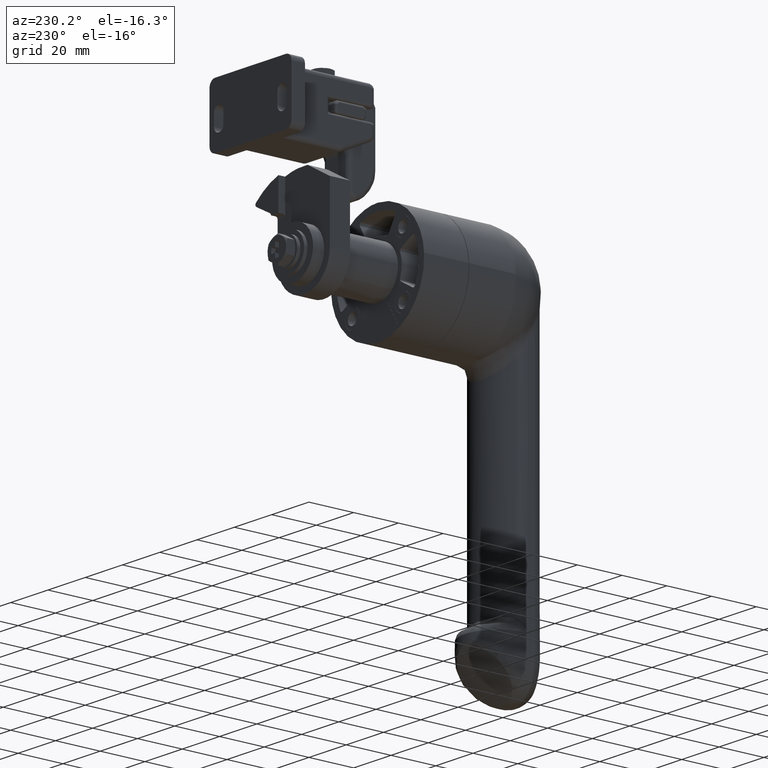
[diagram: clean part render]
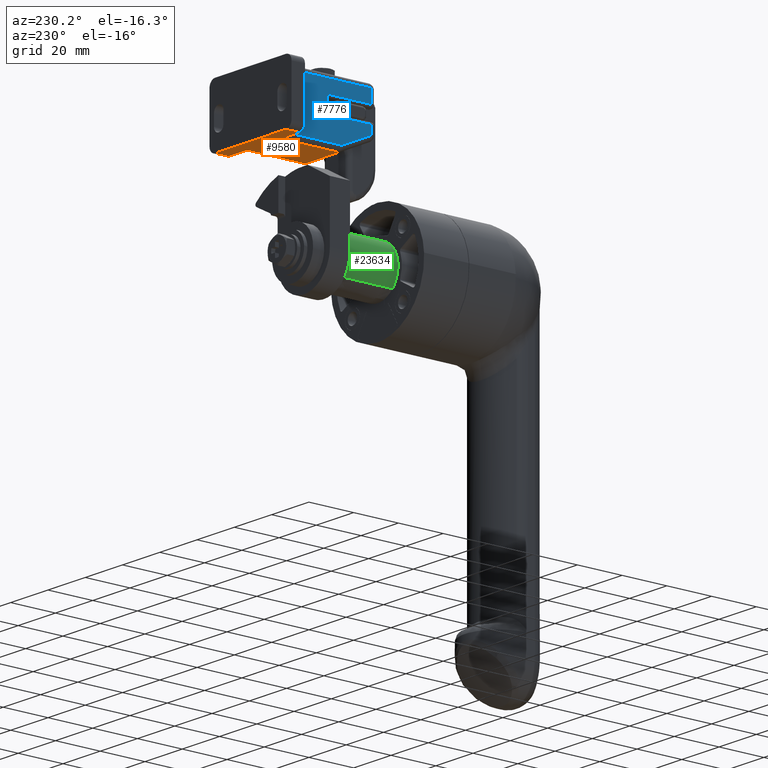
[diagram: same view with three faces highlighted in distinct colors, each labeled with its STEP entity id]
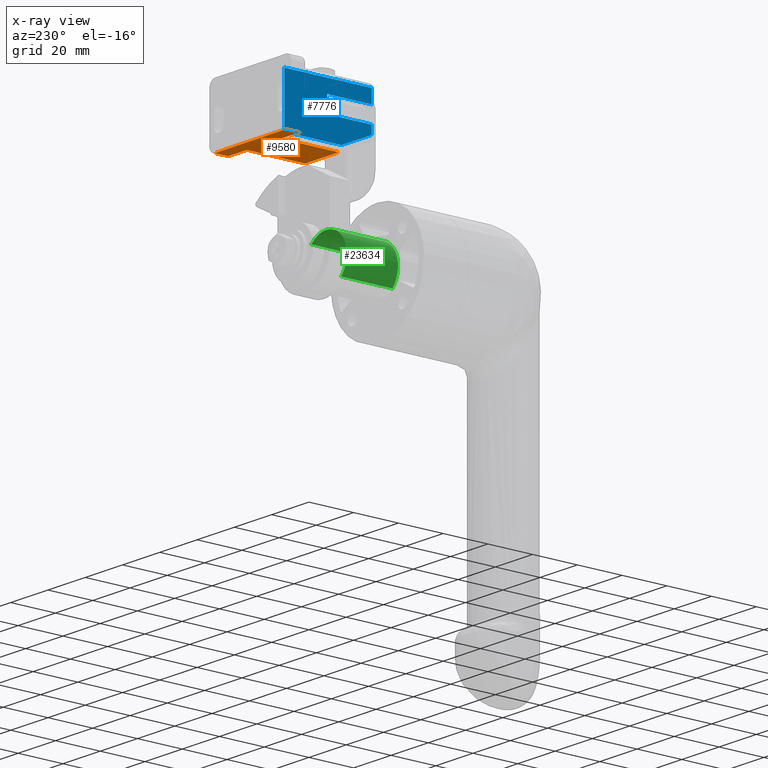
[diagram: x-ray of the same camera — body ghosted, the three highlighted faces saturated]
A machine part, auxiliary view with three faces highlighted in distinct colors.
The next image is the same camera in x-ray (body ghosted, the three faces saturated) — at least one of them is partly hidden behind the body in this view.
Their STEP definitions:

[orange] entity #9580 — the highlighted face is a freeform B-spline surface patch.
#7533=CARTESIAN_POINT('',(-25.249999999969301,31.999999999956099,33.999999999670202));
#7534=VERTEX_POINT('',#7533);
#7548=CARTESIAN_POINT('',(-15.250000000033280,31.999999999946098,33.999999999670202));
#7549=VERTEX_POINT('',#7548);
#7550=CARTESIAN_POINT('',(-25.249999999969301,31.999999999956099,33.999999999670202));
#7551=CARTESIAN_POINT('',(-15.250000000033280,31.999999999946098,33.999999999670202));
#7552=QUASI_UNIFORM_CURVE('',1,(#7550,#7551),.UNSPECIFIED.,.F.,.U.);
#7553=EDGE_CURVE('',#7534,#7549,#7552,.T.);
#7648=CARTESIAN_POINT('',(12.749999999966651,38.0,33.999999999670202));
#7649=VERTEX_POINT('',#7648);
#7663=CARTESIAN_POINT('',(-25.249999999969301,38.0,33.999999999670202));
#7664=VERTEX_POINT('',#7663);
#7665=CARTESIAN_POINT('',(12.749999999966651,38.0,33.999999999670202));
#7666=CARTESIAN_POINT('',(-25.249999999969301,38.0,33.999999999670202));
#7667=QUASI_UNIFORM_CURVE('',1,(#7665,#7666),.UNSPECIFIED.,.F.,.U.);
#7668=EDGE_CURVE('',#7649,#7664,#7667,.T.);
#7807=CARTESIAN_POINT('',(-14.921010117824910,6.432952589162301,33.999999999670202));
#7808=VERTEX_POINT('',#7807);
#7825=CARTESIAN_POINT('',(-15.250000000033280,6.432952589162397,33.999999999670202));
#7826=VERTEX_POINT('',#7825);
#7840=CARTESIAN_POINT('',(-14.921010117824910,6.432952589162301,33.999999999670202));
#7841=CARTESIAN_POINT('',(-15.250000000033280,6.432952589162397,33.999999999670202));
#7842=QUASI_UNIFORM_CURVE('',1,(#7840,#7841),.UNSPECIFIED.,.F.,.U.);
#7843=EDGE_CURVE('',#7808,#7826,#7842,.T.);
#8195=CARTESIAN_POINT('',(-14.350000000001220,6.000000000274898,34.0));
#8196=VERTEX_POINT('',#8195);
#8197=CARTESIAN_POINT('',(-14.350000000001220,6.000000000274898,34.0));
#8198=CARTESIAN_POINT('',(-14.663579343742480,6.000000001000878,33.999999999670209));
#8199=CARTESIAN_POINT('',(-14.921010117824910,6.432952589162309,33.999999999670202));
#8207=(BOUNDED_CURVE()B_SPLINE_CURVE(2,(#8197,#8198,#8199),.UNSPECIFIED.,.F.,.U.)CURVE()GEOMETRIC_REPRESENTATION_ITEM()QUASI_UNIFORM_CURVE()RATIONAL_B_SPLINE_CURVE((1.0,0.954186308323294,1.0))REPRESENTATION_ITEM(''));
#8208=EDGE_CURVE('',#8196,#7808,#8207,.T.);
#8980=CARTESIAN_POINT('',(-15.250000000033280,6.432952589162397,33.999999999670202));
#8981=CARTESIAN_POINT('',(-15.250000000033280,31.999999999946098,33.999999999670202));
#8982=QUASI_UNIFORM_CURVE('',1,(#8980,#8981),.UNSPECIFIED.,.F.,.U.);
#8983=EDGE_CURVE('',#7826,#7549,#8982,.T.);
#9012=CARTESIAN_POINT('',(2.749999999966720,6.432952589162301,33.999999999670202));
#9013=VERTEX_POINT('',#9012);
#9027=CARTESIAN_POINT('',(2.749999999966720,31.999999999946201,33.999999999670202));
#9028=VERTEX_POINT('',#9027);
#9029=CARTESIAN_POINT('',(2.749999999966720,31.999999999946201,33.999999999670202));
#9030=CARTESIAN_POINT('',(2.749999999966720,6.432952589162301,33.999999999670202));
#9031=QUASI_UNIFORM_CURVE('',1,(#9029,#9030),.UNSPECIFIED.,.F.,.U.);
#9032=EDGE_CURVE('',#9028,#9013,#9031,.T.);
#9198=CARTESIAN_POINT('',(12.749999999966651,31.999999999956120,33.999999999670202));
#9199=VERTEX_POINT('',#9198);
#9215=CARTESIAN_POINT('',(12.749999999966651,38.0,33.999999999670202));
#9216=CARTESIAN_POINT('',(12.749999999966651,31.999999999956120,33.999999999670202));
#9217=QUASI_UNIFORM_CURVE('',1,(#9215,#9216),.UNSPECIFIED.,.F.,.U.);
#9218=EDGE_CURVE('',#7649,#9199,#9217,.T.);
#9244=CARTESIAN_POINT('',(-25.249999999969301,31.999999999956099,33.999999999670202));
#9245=CARTESIAN_POINT('',(-25.249999999969301,38.0,33.999999999670202));
#9246=QUASI_UNIFORM_CURVE('',1,(#9244,#9245),.UNSPECIFIED.,.F.,.U.);
#9247=EDGE_CURVE('',#7534,#7664,#9246,.T.);
#9533=CARTESIAN_POINT('',(-27.148099926314728,4.401600061994486,33.999999999670202));
#9534=CARTESIAN_POINT('',(14.648100945551500,4.401600061994486,33.999999999670202));
#9535=CARTESIAN_POINT('',(-27.148099926314728,39.598400796285993,33.999999999670202));
#9536=CARTESIAN_POINT('',(14.648100945551500,39.598400796285993,33.999999999670202));
#9537=B_SPLINE_SURFACE_WITH_KNOTS('',1,1,((#9533,#9535),(#9534,#9536)),.UNSPECIFIED.,.F.,.F.,.U.,(2,2),(2,2),(0.0,41.796200871866233),(0.0,35.196800734291507),.UNSPECIFIED.);
#9538=ORIENTED_EDGE('',*,*,#9032,.T.);
#9539=CARTESIAN_POINT('',(2.421010117822419,6.432952589162301,33.999999999670202));
#9540=VERTEX_POINT('',#9539);
#9541=CARTESIAN_POINT('',(2.749999999966720,6.432952589162301,33.999999999670202));
#9542=CARTESIAN_POINT('',(2.421010117822419,6.432952589162301,33.999999999670202));
#9543=QUASI_UNIFORM_CURVE('',1,(#9541,#9542),.UNSPECIFIED.,.F.,.U.);
#9544=EDGE_CURVE('',#9013,#9540,#9543,.T.);
#9545=ORIENTED_EDGE('',*,*,#9544,.T.);
#9546=CARTESIAN_POINT('',(1.849999999998721,5.999999999973596,33.999999999670202));
#9547=VERTEX_POINT('',#9546);
#9548=CARTESIAN_POINT('',(2.421010117822418,6.432952589162301,33.999999999670202));
#9549=CARTESIAN_POINT('',(2.163579343739963,6.000000001000775,33.999999999670202));
#9550=CARTESIAN_POINT('',(1.849999999998721,6.000000001000775,33.999999999670202));
#9558=(BOUNDED_CURVE()B_SPLINE_CURVE(2,(#9548,#9549,#9550),.UNSPECIFIED.,.F.,.U.)CURVE()GEOMETRIC_REPRESENTATION_ITEM()QUASI_UNIFORM_CURVE()RATIONAL_B_SPLINE_CURVE((1.0,0.954186308323281,1.0))REPRESENTATION_ITEM(''));
#9559=EDGE_CURVE('',#9540,#9547,#9558,.T.);
#9560=ORIENTED_EDGE('',*,*,#9559,.T.);
#9561=CARTESIAN_POINT('',(-14.350000000001220,6.000000000274898,34.0));
#9562=CARTESIAN_POINT('',(1.849999999998721,5.999999999973596,33.999999999670202));
#9563=QUASI_UNIFORM_CURVE('',1,(#9561,#9562),.UNSPECIFIED.,.F.,.U.);
#9564=EDGE_CURVE('',#8196,#9547,#9563,.T.);
#9565=ORIENTED_EDGE('',*,*,#9564,.F.);
#9566=ORIENTED_EDGE('',*,*,#8208,.T.);
#9567=ORIENTED_EDGE('',*,*,#7843,.T.);
#9568=ORIENTED_EDGE('',*,*,#8983,.T.);
#9569=ORIENTED_EDGE('',*,*,#7553,.F.);
#9570=ORIENTED_EDGE('',*,*,#9247,.T.);
#9571=ORIENTED_EDGE('',*,*,#7668,.F.);
#9572=ORIENTED_EDGE('',*,*,#9218,.T.);
#9573=CARTESIAN_POINT('',(2.749999999966720,31.999999999946201,33.999999999670202));
#9574=CARTESIAN_POINT('',(12.749999999966651,31.999999999956120,33.999999999670202));
#9575=QUASI_UNIFORM_CURVE('',1,(#9573,#9574),.UNSPECIFIED.,.F.,.U.);
#9576=EDGE_CURVE('',#9028,#9199,#9575,.T.);
#9577=ORIENTED_EDGE('',*,*,#9576,.F.);
#9578=EDGE_LOOP('',(#9538,#9545,#9560,#9565,#9566,#9567,#9568,#9569,#9570,#9571,#9572,#9577));
#9579=FACE_OUTER_BOUND('',#9578,.T.);
#9580=ADVANCED_FACE('',(#9579),#9537,.F.);

[blue] entity #7776 — the highlighted face is a freeform B-spline surface patch.
#6447=CARTESIAN_POINT('',(-17.250000000033278,12.999999999123800,45.899999999962027));
#6448=VERTEX_POINT('',#6447);
#6601=CARTESIAN_POINT('',(-17.250000000033278,12.999999999123800,53.099999999962243));
#6602=VERTEX_POINT('',#6601);
#6724=CARTESIAN_POINT('',(-17.250000000033278,12.999999999123800,45.899999999962027));
#6725=CARTESIAN_POINT('',(-17.250000000033278,12.999999999123800,53.099999999962243));
#6726=QUASI_UNIFORM_CURVE('',1,(#6724,#6725),.UNSPECIFIED.,.F.,.U.);
#6727=EDGE_CURVE('',#6448,#6602,#6726,.T.);
#6755=CARTESIAN_POINT('',(-17.250000000033278,-7.000000000826603,45.899999999950943));
#6756=VERTEX_POINT('',#6755);
#6757=CARTESIAN_POINT('',(-17.250000000033278,-7.000000000826603,45.899999999950943));
#6758=CARTESIAN_POINT('',(-17.250000000033278,12.999999999123800,45.899999999962027));
#6759=QUASI_UNIFORM_CURVE('',1,(#6757,#6758),.UNSPECIFIED.,.F.,.U.);
#6760=EDGE_CURVE('',#6756,#6448,#6759,.T.);
#6883=CARTESIAN_POINT('',(-17.250000000033278,-7.000000000826603,53.099999999951152));
#6884=VERTEX_POINT('',#6883);
#6885=CARTESIAN_POINT('',(-17.250000000033278,12.999999999123800,53.099999999962243));
#6886=CARTESIAN_POINT('',(-17.250000000033278,-7.000000000826603,53.099999999951152));
#6887=QUASI_UNIFORM_CURVE('',1,(#6885,#6886),.UNSPECIFIED.,.F.,.U.);
#6888=EDGE_CURVE('',#6602,#6884,#6887,.T.);
#6980=CARTESIAN_POINT('',(-17.250000000033278,-7.000000000826603,42.101772780151819));
#6981=VERTEX_POINT('',#6980);
#7091=CARTESIAN_POINT('',(-17.250000000033278,-7.000000000826603,42.101772780151819));
#7092=CARTESIAN_POINT('',(-17.250000000033278,-7.000000000826603,45.899999999950943));
#7093=QUASI_UNIFORM_CURVE('',1,(#7091,#7092),.UNSPECIFIED.,.F.,.U.);
#7094=EDGE_CURVE('',#6981,#6756,#7093,.T.);
#7114=CARTESIAN_POINT('',(-17.250000000033278,6.432952589162397,35.999999999670138));
#7115=VERTEX_POINT('',#7114);
#7116=CARTESIAN_POINT('',(-17.250000000033278,6.432952589162397,35.999999999670138));
#7117=CARTESIAN_POINT('',(-17.250000000033278,-7.000000000826603,42.101772780151819));
#7118=QUASI_UNIFORM_CURVE('',1,(#7116,#7117),.UNSPECIFIED.,.F.,.U.);
#7119=EDGE_CURVE('',#7115,#6981,#7118,.T.);
#7555=CARTESIAN_POINT('',(-17.250000000033278,31.999999999948201,35.999999999670138));
#7556=VERTEX_POINT('',#7555);
#7570=CARTESIAN_POINT('',(-17.250000000033278,31.999999999948201,58.999999999670159));
#7571=VERTEX_POINT('',#7570);
#7572=CARTESIAN_POINT('',(-17.250000000033278,31.999999999948201,58.999999999670159));
#7573=CARTESIAN_POINT('',(-17.250000000033278,31.999999999948201,35.999999999670138));
#7574=QUASI_UNIFORM_CURVE('',1,(#7572,#7573),.UNSPECIFIED.,.F.,.U.);
#7575=EDGE_CURVE('',#7571,#7556,#7574,.T.);
#7746=CARTESIAN_POINT('',(-17.250000000033278,-8.948049925275747,34.851150044248612));
#7747=CARTESIAN_POINT('',(-17.250000000033278,33.948050970458851,34.851150044248612));
#7748=CARTESIAN_POINT('',(-17.250000000033278,-8.948049925275747,60.148850571999773));
#7749=CARTESIAN_POINT('',(-17.250000000033278,33.948050970458851,60.148850571999773));
#7750=B_SPLINE_SURFACE_WITH_KNOTS('',1,1,((#7746,#7748),(#7747,#7749)),.UNSPECIFIED.,.F.,.F.,.U.,(2,2),(2,2),(0.0,42.896100895734598),(0.0,25.297700527751172),.UNSPECIFIED.);
#7751=ORIENTED_EDGE('',*,*,#6727,.T.);
#7752=ORIENTED_EDGE('',*,*,#6888,.T.);
#7753=CARTESIAN_POINT('',(-17.250000000033278,-7.000000000826603,58.999999999670159));
#7754=VERTEX_POINT('',#7753);
#7755=CARTESIAN_POINT('',(-17.250000000033278,-7.000000000826603,53.099999999951152));
#7756=CARTESIAN_POINT('',(-17.250000000033278,-7.000000000826603,58.999999999670159));
#7757=QUASI_UNIFORM_CURVE('',1,(#7755,#7756),.UNSPECIFIED.,.F.,.U.);
#7758=EDGE_CURVE('',#6884,#7754,#7757,.T.);
#7759=ORIENTED_EDGE('',*,*,#7758,.T.);
#7760=CARTESIAN_POINT('',(-17.250000000033278,-7.000000000826603,58.999999999670159));
#7761=CARTESIAN_POINT('',(-17.250000000033278,31.999999999948201,58.999999999670159));
#7762=QUASI_UNIFORM_CURVE('',1,(#7760,#7761),.UNSPECIFIED.,.F.,.U.);
#7763=EDGE_CURVE('',#7754,#7571,#7762,.T.);
#7764=ORIENTED_EDGE('',*,*,#7763,.T.);
#7765=ORIENTED_EDGE('',*,*,#7575,.T.);
#7766=CARTESIAN_POINT('',(-17.250000000033278,31.999999999948201,35.999999999670138));
#7767=CARTESIAN_POINT('',(-17.250000000033278,6.432952589162397,35.999999999670138));
#7768=QUASI_UNIFORM_CURVE('',1,(#7766,#7767),.UNSPECIFIED.,.F.,.U.);
#7769=EDGE_CURVE('',#7556,#7115,#7768,.T.);
#7770=ORIENTED_EDGE('',*,*,#7769,.T.);
#7771=ORIENTED_EDGE('',*,*,#7119,.T.);
#7772=ORIENTED_EDGE('',*,*,#7094,.T.);
#7773=ORIENTED_EDGE('',*,*,#6760,.T.);
#7774=EDGE_LOOP('',(#7751,#7752,#7759,#7764,#7765,#7770,#7771,#7772,#7773));
#7775=FACE_OUTER_BOUND('',#7774,.T.);
#7776=ADVANCED_FACE('',(#7775),#7750,.F.);

[green] entity #23634 — the highlighted face is a freeform B-spline surface patch.
#22138=CARTESIAN_POINT('',(-10.999131486410761,-0.999999992921437,0.138226438842135));
#22139=VERTEX_POINT('',#22138);
#22153=CARTESIAN_POINT('',(-1.384706E-010,-1.0,11.000000000063780));
#22154=VERTEX_POINT('',#22153);
#22155=CARTESIAN_POINT('',(-1.384706E-010,-1.0,11.000000000063780));
#22156=CARTESIAN_POINT('',(-10.862631229011559,-0.999999996460663,11.000000000000995));
#22157=CARTESIAN_POINT('',(-10.999131486410763,-0.999999992921437,0.138226438842135));
#22165=(BOUNDED_CURVE()B_SPLINE_CURVE(2,(#22155,#22156,#22157),.UNSPECIFIED.,.F.,.U.)B_SPLINE_CURVE_WITH_KNOTS((3,3),(0.0,0.247784295919732),.UNSPECIFIED.)CURVE()GEOMETRIC_REPRESENTATION_ITEM()RATIONAL_B_SPLINE_CURVE((1.0,0.709702639986579,0.994854295639418))REPRESENTATION_ITEM(''));
#22166=EDGE_CURVE('',#22154,#22139,#22165,.T.);
#22168=CARTESIAN_POINT('',(8.001822878844099,-0.999999996346848,7.547902398265624));
#22169=VERTEX_POINT('',#22168);
#22170=CARTESIAN_POINT('',(8.001822878844099,-0.999999996346848,7.547902398265624));
#22171=CARTESIAN_POINT('',(4.745552881199494,-0.999999998492186,11.000000000044288));
#22172=CARTESIAN_POINT('',(-1.384706E-010,-1.0,11.000000000063780));
#22180=(BOUNDED_CURVE()B_SPLINE_CURVE(2,(#22170,#22171,#22172),.UNSPECIFIED.,.F.,.U.)B_SPLINE_CURVE_WITH_KNOTS((3,3),(0.870596274201548,1.0),.UNSPECIFIED.)CURVE()GEOMETRIC_REPRESENTATION_ITEM()RATIONAL_B_SPLINE_CURVE((0.853735151229425,0.848394104897752,1.0))REPRESENTATION_ITEM(''));
#22181=EDGE_CURVE('',#22169,#22154,#22180,.T.);
#22262=CARTESIAN_POINT('',(-8.001822832977600,-0.999999996346768,-7.547902447168664));
#22263=VERTEX_POINT('',#22262);
#22277=CARTESIAN_POINT('',(-10.999131486410763,-0.999999992921437,0.138226438842135));
#22278=CARTESIAN_POINT('',(-11.000000000170226,-0.999999992943397,0.069115947973653));
#22279=CARTESIAN_POINT('',(-11.000000000170081,-0.999999992965635,4.655891E-013));
#22280=CARTESIAN_POINT('',(-11.000000000161467,-0.999999994371487,-4.369419063071207));
#22281=CARTESIAN_POINT('',(-8.001822832977600,-0.999999996346768,-7.547902447168664));
#22289=(BOUNDED_CURVE()B_SPLINE_CURVE(2,(#22277,#22278,#22279,#22280,#22281),.UNSPECIFIED.,.F.,.U.)B_SPLINE_CURVE_WITH_KNOTS((3,2,3),(0.247784295919732,0.250000000000000,0.370596275124342),.UNSPECIFIED.)CURVE()GEOMETRIC_REPRESENTATION_ITEM()RATIONAL_B_SPLINE_CURVE((0.994854295639418,0.997404141199969,1.0,0.858712675207675,0.853735151153250))REPRESENTATION_ITEM(''));
#22290=EDGE_CURVE('',#22139,#22263,#22289,.T.);
#23513=CARTESIAN_POINT('',(-8.001806352859617,-23.999999999647962,-7.547919918302977));
#23514=VERTEX_POINT('',#23513);
#23530=CARTESIAN_POINT('',(-8.001822832977600,-0.999999996346768,-7.547902447168664));
#23531=CARTESIAN_POINT('',(-8.001806352859617,-23.999999999647962,-7.547919918302977));
#23532=QUASI_UNIFORM_CURVE('',1,(#23530,#23531),.UNSPECIFIED.,.F.,.U.);
#23533=EDGE_CURVE('',#22263,#23514,#23532,.T.);
#23538=CARTESIAN_POINT('',(8.001824473822033,-23.999999999647901,7.547900707342159));
#23539=VERTEX_POINT('',#23538);
#23540=CARTESIAN_POINT('',(8.001822878844099,-0.999999996346848,7.547902398265624));
#23541=CARTESIAN_POINT('',(8.001824473822033,-23.999999999647901,7.547900707342159));
#23542=QUASI_UNIFORM_CURVE('',1,(#23540,#23541),.UNSPECIFIED.,.F.,.U.);
#23543=EDGE_CURVE('',#22169,#23539,#23542,.T.);
#23592=CARTESIAN_POINT('',(8.001820690736560,-0.424999992753275,7.547904717938891));
#23593=CARTESIAN_POINT('',(0.453915972797669,-0.424999992753275,15.549725408813915));
#23594=CARTESIAN_POINT('',(-7.547904718077361,-0.424999992753275,8.001820690875031));
#23595=CARTESIAN_POINT('',(-15.549725408952394,-0.424999992753275,0.453915972936140));
#23596=CARTESIAN_POINT('',(-8.001820691013501,-0.424999992753275,-7.547904717938891));
#23597=CARTESIAN_POINT('',(8.001820690736560,-24.589374999820269,7.547904717938891));
#23598=CARTESIAN_POINT('',(0.453915972797669,-24.589374999820279,15.549725408813915));
#23599=CARTESIAN_POINT('',(-7.547904718077361,-24.589374999820269,8.001820690875031));
#23600=CARTESIAN_POINT('',(-15.549725408952394,-24.589374999820279,0.453915972936140));
#23601=CARTESIAN_POINT('',(-8.001820691013501,-24.589374999820269,-7.547904717938891));
#23609=(BOUNDED_SURFACE()B_SPLINE_SURFACE(2,1,((#23592,#23597),(#23593,#23598),(#23594,#23599),(#23595,#23600),(#23596,#23601)),.UNSPECIFIED.,.F.,.F.,.U.)B_SPLINE_SURFACE_WITH_KNOTS((3,2,3),(2,2),(0.0,18.225396744416170,36.450793488832353),(0.0,24.164375007067001),.UNSPECIFIED.)GEOMETRIC_REPRESENTATION_ITEM()RATIONAL_B_SPLINE_SURFACE(((1.0,1.0),(0.707106781186548,0.707106781186548),(1.0,1.0),(0.707106781186548,0.707106781186548),(1.0,1.0)))REPRESENTATION_ITEM('')SURFACE());
#23610=CARTESIAN_POINT('',(8.001824473822033,-23.999999999647894,7.547900707342159));
#23611=CARTESIAN_POINT('',(4.745554259681924,-23.999999999647901,11.000000000061929));
#23612=CARTESIAN_POINT('',(-2.828081E-010,-23.999999999647908,11.000000000001339));
#23613=CARTESIAN_POINT('',(-9.326373205029437,-23.999999999647923,10.999999999882251));
#23614=CARTESIAN_POINT('',(-10.851855419567160,-23.999999999647951,1.799231490277874));
#23615=CARTESIAN_POINT('',(-11.743867239964874,-23.999999999647962,-3.580834032018110));
#23616=CARTESIAN_POINT('',(-8.001806352859617,-23.999999999647965,-7.547919918302977));
#23624=(BOUNDED_CURVE()B_SPLINE_CURVE(2,(#23610,#23611,#23612,#23613,#23614,#23615,#23616),.UNSPECIFIED.,.F.,.U.)B_SPLINE_CURVE_WITH_KNOTS((3,2,2,3),(0.356013133359078,0.500000000000000,0.750000000000000,0.912161609969419),.UNSPECIFIED.)CURVE()GEOMETRIC_REPRESENTATION_ITEM()RATIONAL_B_SPLINE_CURVE((0.884110543386532,0.863354835220112,1.0,0.762747172767053,1.0,0.846106798264435,0.891858151383173))REPRESENTATION_ITEM(''));
#23625=EDGE_CURVE('',#23539,#23514,#23624,.T.);
#23626=ORIENTED_EDGE('',*,*,#23625,.F.);
#23627=ORIENTED_EDGE('',*,*,#23543,.F.);
#23628=ORIENTED_EDGE('',*,*,#22181,.T.);
#23629=ORIENTED_EDGE('',*,*,#22166,.T.);
#23630=ORIENTED_EDGE('',*,*,#22290,.T.);
#23631=ORIENTED_EDGE('',*,*,#23533,.T.);
#23632=EDGE_LOOP('',(#23626,#23627,#23628,#23629,#23630,#23631));
#23633=FACE_OUTER_BOUND('',#23632,.T.);
#23634=ADVANCED_FACE('',(#23633),#23609,.T.);